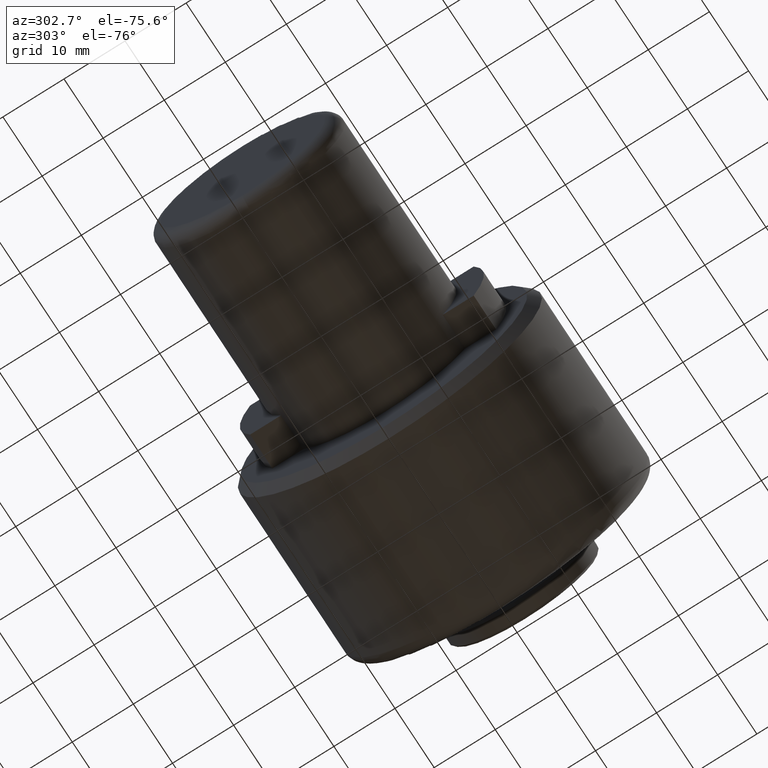
[diagram: clean part render]
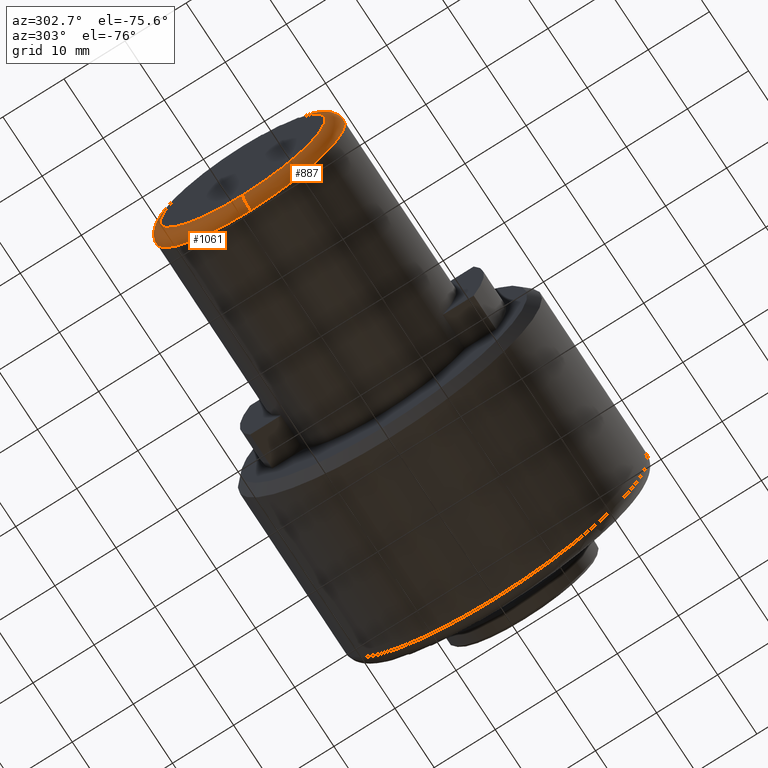
[diagram: same view with one multi-face feature highlighted, each face labeled with its STEP entity id]
A machine part, auxiliary view. The highlighted faces form ONE feature: a constant-radius fillet chain: 2 tangent blend faces with common blend radius 2 mm. The faces share edges in the B-rep.
Their STEP definitions:
[1] entity #1061 (Torus):
#203 = CARTESIAN_POINT ( 'NONE',  ( 0.0000000000000000000, 0.0000000000000000000, -13.50000000000000000 ) ) ;
#208 = DIRECTION ( 'NONE',  ( 1.000000000000000000, -0.0000000000000000000, 0.0000000000000000000 ) ) ;
#239 = AXIS2_PLACEMENT_3D ( 'NONE', #632, #1404, #735 ) ;
#315 = DIRECTION ( 'NONE',  ( 0.0000000000000000000, 1.000000000000000000, -1.224646799147353200E-016 ) ) ;
#328 = DIRECTION ( 'NONE',  ( 0.0000000000000000000, 0.0000000000000000000, -1.000000000000000000 ) ) ;
#366 = CIRCLE ( 'NONE', #840, 2.000000000000000000 ) ;
#393 = EDGE_LOOP ( 'NONE', ( #543, #485, #802, #886 ) ) ;
#400 = EDGE_CURVE ( 'NONE', #622, #1362, #1385, .T. ) ;
#431 = CARTESIAN_POINT ( 'NONE',  ( 0.0000000000000000000, 1.775737858763662000E-015, 13.50000000000000000 ) ) ;
#433 = CARTESIAN_POINT ( 'NONE',  ( 0.0000000000000000000, 0.0000000000000000000, 0.0000000000000000000 ) ) ;
#485 = ORIENTED_EDGE ( 'NONE', *, *, #507, .T. ) ;
#507 = EDGE_CURVE ( 'NONE', #1027, #1142, #366, .T. ) ;
#526 = DIRECTION ( 'NONE',  ( 1.000000000000000000, -0.0000000000000000000, 0.0000000000000000000 ) ) ;
#543 = ORIENTED_EDGE ( 'NONE', *, *, #559, .F. ) ;
#546 = DIRECTION ( 'NONE',  ( 0.0000000000000000000, 0.0000000000000000000, -1.000000000000000000 ) ) ;
#559 = EDGE_CURVE ( 'NONE', #1027, #622, #875, .T. ) ;
#566 = CARTESIAN_POINT ( 'NONE',  ( 2.000000000000001800, 0.0000000000000000000, 15.50000000000000000 ) ) ;
#567 = AXIS2_PLACEMENT_3D ( 'NONE', #1434, #208, #328 ) ;
#622 = VERTEX_POINT ( 'NONE', #203 ) ;
#630 = TOROIDAL_SURFACE ( 'NONE', #567, 13.50000000000000000, 2.000000000000000000 ) ;
#632 = CARTESIAN_POINT ( 'NONE',  ( 2.000000000000001800, 0.0000000000000000000, -13.50000000000000000 ) ) ;
#726 = CIRCLE ( 'NONE', #1037, 15.50000000000000000 ) ;
#735 = DIRECTION ( 'NONE',  ( 0.0000000000000000000, 0.0000000000000000000, -1.000000000000000000 ) ) ;
#802 = ORIENTED_EDGE ( 'NONE', *, *, #849, .F. ) ;
#840 = AXIS2_PLACEMENT_3D ( 'NONE', #981, #315, #1083 ) ;
#849 = EDGE_CURVE ( 'NONE', #1362, #1142, #726, .T. ) ;
#875 = CIRCLE ( 'NONE', #1135, 13.50000000000000000 ) ;
#881 = FACE_OUTER_BOUND ( 'NONE', #393, .T. ) ;
#886 = ORIENTED_EDGE ( 'NONE', *, *, #400, .F. ) ;
#981 = CARTESIAN_POINT ( 'NONE',  ( 2.000000000000001800, 1.653273178848926900E-015, 13.50000000000000000 ) ) ;
#1027 = VERTEX_POINT ( 'NONE', #431 ) ;
#1037 = AXIS2_PLACEMENT_3D ( 'NONE', #1191, #526, #1300 ) ;
#1061 = ADVANCED_FACE ( 'NONE', ( #881 ), #630, .T. ) ;
#1083 = DIRECTION ( 'NONE',  ( 0.0000000000000000000, 1.224646799147353500E-016, 1.000000000000000000 ) ) ;
#1135 = AXIS2_PLACEMENT_3D ( 'NONE', #433, #1213, #546 ) ;
#1142 = VERTEX_POINT ( 'NONE', #566 ) ;
#1148 = CARTESIAN_POINT ( 'NONE',  ( 2.000000000000001800, 1.898202538678397600E-015, -15.50000000000000000 ) ) ;
#1191 = CARTESIAN_POINT ( 'NONE',  ( 2.000000000000001800, 0.0000000000000000000, 0.0000000000000000000 ) ) ;
#1213 = DIRECTION ( 'NONE',  ( -1.000000000000000000, 0.0000000000000000000, -0.0000000000000000000 ) ) ;
#1300 = DIRECTION ( 'NONE',  ( 0.0000000000000000000, 0.0000000000000000000, -1.000000000000000000 ) ) ;
#1362 = VERTEX_POINT ( 'NONE', #1148 ) ;
#1385 = CIRCLE ( 'NONE', #239, 2.000000000000000000 ) ;
#1404 = DIRECTION ( 'NONE',  ( 0.0000000000000000000, -1.000000000000000000, -0.0000000000000000000 ) ) ;
#1434 = CARTESIAN_POINT ( 'NONE',  ( 2.000000000000001800, 0.0000000000000000000, 0.0000000000000000000 ) ) ;
[2] entity #887 (Torus):
#40 = AXIS2_PLACEMENT_3D ( 'NONE', #1415, #1194, #1418 ) ;
#45 = ORIENTED_EDGE ( 'NONE', *, *, #403, .F. ) ;
#173 = CARTESIAN_POINT ( 'NONE',  ( 2.000000000000001800, 0.0000000000000000000, 0.0000000000000000000 ) ) ;
#203 = CARTESIAN_POINT ( 'NONE',  ( 0.0000000000000000000, 0.0000000000000000000, -13.50000000000000000 ) ) ;
#239 = AXIS2_PLACEMENT_3D ( 'NONE', #632, #1404, #735 ) ;
#296 = AXIS2_PLACEMENT_3D ( 'NONE', #1055, #395, #1168 ) ;
#297 = DIRECTION ( 'NONE',  ( 0.0000000000000000000, 0.0000000000000000000, -1.000000000000000000 ) ) ;
#315 = DIRECTION ( 'NONE',  ( 0.0000000000000000000, 1.000000000000000000, -1.224646799147353200E-016 ) ) ;
#324 = AXIS2_PLACEMENT_3D ( 'NONE', #173, #965, #297 ) ;
#366 = CIRCLE ( 'NONE', #840, 2.000000000000000000 ) ;
#395 = DIRECTION ( 'NONE',  ( -1.000000000000000000, 0.0000000000000000000, -0.0000000000000000000 ) ) ;
#399 = TOROIDAL_SURFACE ( 'NONE', #40, 13.50000000000000000, 2.000000000000000000 ) ;
#400 = EDGE_CURVE ( 'NONE', #622, #1362, #1385, .T. ) ;
#403 = EDGE_CURVE ( 'NONE', #1142, #1362, #825, .T. ) ;
#431 = CARTESIAN_POINT ( 'NONE',  ( 0.0000000000000000000, 1.775737858763662000E-015, 13.50000000000000000 ) ) ;
#507 = EDGE_CURVE ( 'NONE', #1027, #1142, #366, .T. ) ;
#535 = CIRCLE ( 'NONE', #296, 13.50000000000000000 ) ;
#566 = CARTESIAN_POINT ( 'NONE',  ( 2.000000000000001800, 0.0000000000000000000, 15.50000000000000000 ) ) ;
#622 = VERTEX_POINT ( 'NONE', #203 ) ;
#632 = CARTESIAN_POINT ( 'NONE',  ( 2.000000000000001800, 0.0000000000000000000, -13.50000000000000000 ) ) ;
#666 = ORIENTED_EDGE ( 'NONE', *, *, #716, .F. ) ;
#697 = FACE_OUTER_BOUND ( 'NONE', #761, .T. ) ;
#716 = EDGE_CURVE ( 'NONE', #622, #1027, #535, .T. ) ;
#735 = DIRECTION ( 'NONE',  ( 0.0000000000000000000, 0.0000000000000000000, -1.000000000000000000 ) ) ;
#761 = EDGE_LOOP ( 'NONE', ( #1257, #666, #775, #45 ) ) ;
#775 = ORIENTED_EDGE ( 'NONE', *, *, #400, .T. ) ;
#825 = CIRCLE ( 'NONE', #324, 15.50000000000000000 ) ;
#840 = AXIS2_PLACEMENT_3D ( 'NONE', #981, #315, #1083 ) ;
#887 = ADVANCED_FACE ( 'NONE', ( #697 ), #399, .T. ) ;
#965 = DIRECTION ( 'NONE',  ( 1.000000000000000000, -0.0000000000000000000, 0.0000000000000000000 ) ) ;
#981 = CARTESIAN_POINT ( 'NONE',  ( 2.000000000000001800, 1.653273178848926900E-015, 13.50000000000000000 ) ) ;
#1027 = VERTEX_POINT ( 'NONE', #431 ) ;
#1055 = CARTESIAN_POINT ( 'NONE',  ( 0.0000000000000000000, 0.0000000000000000000, 0.0000000000000000000 ) ) ;
#1083 = DIRECTION ( 'NONE',  ( 0.0000000000000000000, 1.224646799147353500E-016, 1.000000000000000000 ) ) ;
#1142 = VERTEX_POINT ( 'NONE', #566 ) ;
#1148 = CARTESIAN_POINT ( 'NONE',  ( 2.000000000000001800, 1.898202538678397600E-015, -15.50000000000000000 ) ) ;
#1168 = DIRECTION ( 'NONE',  ( 0.0000000000000000000, 0.0000000000000000000, -1.000000000000000000 ) ) ;
#1194 = DIRECTION ( 'NONE',  ( 1.000000000000000000, -0.0000000000000000000, 0.0000000000000000000 ) ) ;
#1257 = ORIENTED_EDGE ( 'NONE', *, *, #507, .F. ) ;
#1362 = VERTEX_POINT ( 'NONE', #1148 ) ;
#1385 = CIRCLE ( 'NONE', #239, 2.000000000000000000 ) ;
#1404 = DIRECTION ( 'NONE',  ( 0.0000000000000000000, -1.000000000000000000, -0.0000000000000000000 ) ) ;
#1415 = CARTESIAN_POINT ( 'NONE',  ( 2.000000000000001800, 0.0000000000000000000, 0.0000000000000000000 ) ) ;
#1418 = DIRECTION ( 'NONE',  ( 0.0000000000000000000, 0.0000000000000000000, -1.000000000000000000 ) ) ;